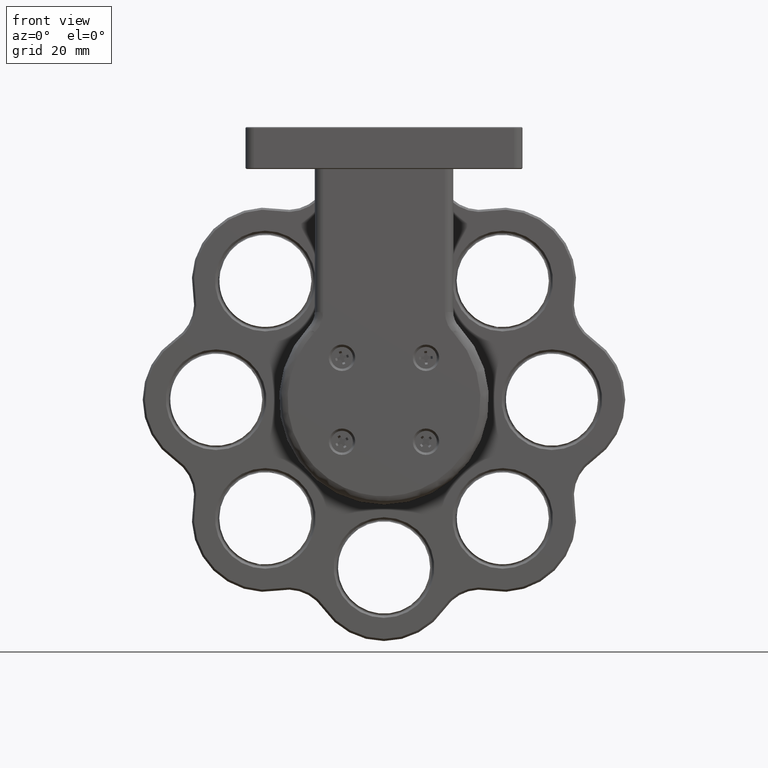
[diagram: clean part render]
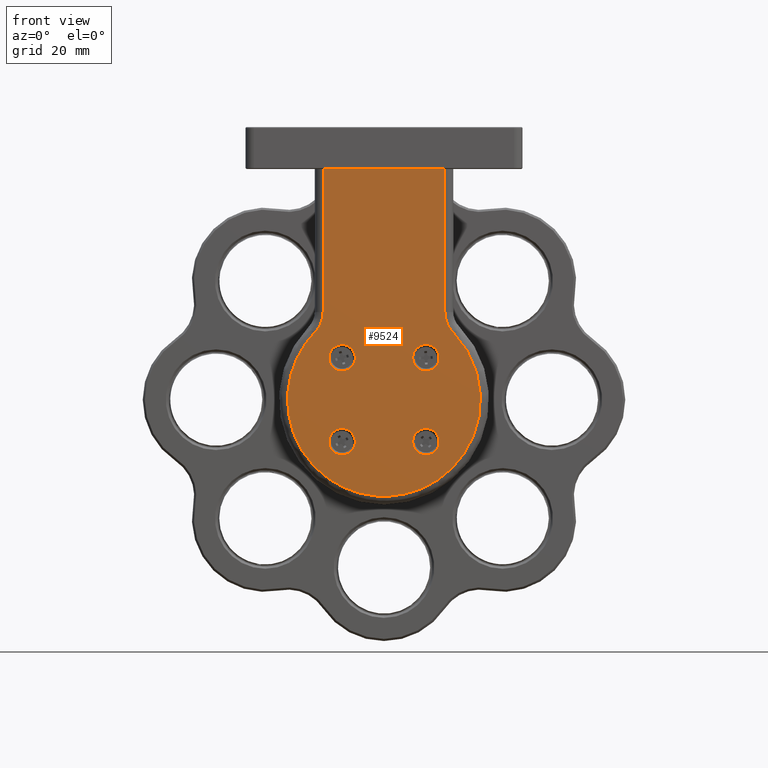
[diagram: same view with one face highlighted and labeled with its STEP entity id]
A machine part, front view. The second image highlights one B-rep face of the part: STEP entity #9524.
In plain terms, the highlighted planar face has unit normal (0, 1, 0).
Its self-contained STEP definition (entity closure, byte-faithful):
#30 = DIRECTION ( 'NONE',  ( 0.000000000000000000, 0.000000000000000000, -1.000000000000000000 ) ) ;
#593 = DIRECTION ( 'NONE',  ( 0.000000000000000000, -0.000000000000000000, 1.000000000000000000 ) ) ;
#861 = CIRCLE ( 'NONE', #7475, 3.150000000061943695 ) ;
#971 = CARTESIAN_POINT ( 'NONE',  ( -39.07838973162194662, -4.320881950128789839, 90.92247595290767492 ) ) ;
#1049 = CARTESIAN_POINT ( 'NONE',  ( -39.07838973162194662, -4.320881950128789839, 69.99999999999998579 ) ) ;
#1634 = VERTEX_POINT ( 'NONE', #16527 ) ;
#1723 = CARTESIAN_POINT ( 'NONE',  ( -8.095056398288617672, -4.320881950128789839, 86.04056489722920276 ) ) ;
#1875 = FACE_BOUND ( 'NONE', #10596, .T. ) ;
#2109 = CARTESIAN_POINT ( 'NONE',  ( -34.57838973162195373, -4.320881950093280466, 79.99999999999998579 ) ) ;
#2941 = VERTEX_POINT ( 'NONE', #11827 ) ;
#2986 = AXIS2_PLACEMENT_3D ( 'NONE', #2109, #18468, #14207 ) ;
#3275 = CARTESIAN_POINT ( 'NONE',  ( -14.57838973162195373, -4.320881950093280466, 79.99999999999998579 ) ) ;
#3298 = EDGE_LOOP ( 'NONE', ( #3677 ) ) ;
#3324 = EDGE_CURVE ( 'NONE', #11368, #18470, #9824, .T. ) ;
#3548 = FACE_BOUND ( 'NONE', #9763, .T. ) ;
#3677 = ORIENTED_EDGE ( 'NONE', *, *, #18954, .F. ) ;
#3691 = DIRECTION ( 'NONE',  ( -0.000000000000000000, 0.000000000000000000, -1.000000000000000000 ) ) ;
#3871 = CARTESIAN_POINT ( 'NONE',  ( -39.07838973162194662, -4.320881950128789839, 125.0000000000000000 ) ) ;
#4406 = CARTESIAN_POINT ( 'NONE',  ( -34.57838973162195373, -4.320881950093280466, 76.85000000003583409 ) ) ;
#4628 = DIRECTION ( 'NONE',  ( 0.000000000000000000, -1.000000000000000000, 0.000000000000000000 ) ) ;
#4809 = EDGE_CURVE ( 'NONE', #18470, #13626, #5486, .T. ) ;
#4942 = CARTESIAN_POINT ( 'NONE',  ( -0.7429387065847683491, -4.320881950128789839, 46.99999999999999289 ) ) ;
#4979 = CARTESIAN_POINT ( 'NONE',  ( -10.07838973162194307, -4.320881950128789839, 69.99999999999998579 ) ) ;
#5345 = ORIENTED_EDGE ( 'NONE', *, *, #10628, .F. ) ;
#5486 = LINE ( 'NONE', #1049, #14151 ) ;
#5490 = DIRECTION ( 'NONE',  ( 1.000000000000000000, 0.000000000000000000, -0.000000000000000000 ) ) ;
#5987 = CARTESIAN_POINT ( 'NONE',  ( -10.07838973162194485, -4.320881950128789839, 90.92247595290767492 ) ) ;
#6213 = CIRCLE ( 'NONE', #9332, 3.150000000061943695 ) ;
#6446 = CIRCLE ( 'NONE', #2986, 3.149999999964153474 ) ;
#6681 = CARTESIAN_POINT ( 'NONE',  ( -24.57838973162195018, -4.320881950128789839, 125.0000000000000000 ) ) ;
#6745 = LINE ( 'NONE', #4979, #7534 ) ;
#7057 = DIRECTION ( 'NONE',  ( 0.000000000000000000, -0.000000000000000000, 1.000000000000000000 ) ) ;
#7453 = ORIENTED_EDGE ( 'NONE', *, *, #18805, .F. ) ;
#7475 = AXIS2_PLACEMENT_3D ( 'NONE', #16918, #14245, #12670 ) ;
#7534 = VECTOR ( 'NONE', #3691, 1000.000000000000000 ) ;
#7551 = CARTESIAN_POINT ( 'NONE',  ( -39.77358252710395448, -4.320881950128789839, 87.36426203642724886 ) ) ;
#7815 =( BOUNDED_CURVE ( )  B_SPLINE_CURVE ( 3, ( #17768, #10357, #4942, #9747, #15771, #11420, #17443 ),
 .UNSPECIFIED., .F., .F. ) 
 B_SPLINE_CURVE_WITH_KNOTS ( ( 4, 3, 4 ),
 ( 0.000000000000000000, 0.5000000000000000000, 1.000000000000000000 ),
 .UNSPECIFIED. ) 
 CURVE ( )  GEOMETRIC_REPRESENTATION_ITEM ( )  RATIONAL_B_SPLINE_CURVE ( ( 1.000000000000000000, 0.5926418732377309873, 0.5926418732377309873, 1.000000000000000000, 0.5926418732377309873, 0.5926418732377309873, 1.000000000000000000 ) ) 
 REPRESENTATION_ITEM ( '' )  );
#7872 = FACE_BOUND ( 'NONE', #3298, .T. ) ;
#8277 = AXIS2_PLACEMENT_3D ( 'NONE', #16950, #9540, #593 ) ;
#9332 = AXIS2_PLACEMENT_3D ( 'NONE', #18135, #4628, #16653 ) ;
#9439 = ORIENTED_EDGE ( 'NONE', *, *, #15178, .F. ) ;
#9524 = ADVANCED_FACE ( 'NONE', ( #18428, #1875, #3548, #7872, #13885 ), #10931, .F. ) ;
#9540 = DIRECTION ( 'NONE',  ( 0.000000000000000000, 1.000000000000000000, 0.000000000000000000 ) ) ;
#9747 = CARTESIAN_POINT ( 'NONE',  ( -24.57838973162196794, -4.320881950128789839, 47.00000000000001421 ) ) ;
#9763 = EDGE_LOOP ( 'NONE', ( #5345 ) ) ;
#9824 =( BOUNDED_CURVE ( )  B_SPLINE_CURVE ( 3, ( #17631, #7551, #18201, #18109 ),
 .UNSPECIFIED., .F., .F. ) 
 B_SPLINE_CURVE_WITH_KNOTS ( ( 4, 4 ),
 ( 0.000000000000000000, 1.000000000000000000 ),
 .UNSPECIFIED. ) 
 CURVE ( )  GEOMETRIC_REPRESENTATION_ITEM ( )  RATIONAL_B_SPLINE_CURVE ( ( 1.000000000000000000, 0.9509752048749909870, 0.9509752048749909870, 1.000000000000000000 ) ) 
 REPRESENTATION_ITEM ( '' )  );
#10005 = LINE ( 'NONE', #6681, #18751 ) ;
#10357 = CARTESIAN_POINT ( 'NONE',  ( 8.528165298313011178, -4.320881950128789839, 68.95849166261918128 ) ) ;
#10596 = EDGE_LOOP ( 'NONE', ( #11221 ) ) ;
#10628 = EDGE_CURVE ( 'NONE', #19189, #19189, #6446, .T. ) ;
#10897 = CARTESIAN_POINT ( 'NONE',  ( -14.57838973162195373, -4.320881950152413609, 56.84999999993804920 ) ) ;
#10931 = PLANE ( 'NONE',  #8277 ) ;
#11217 =( BOUNDED_CURVE ( )  B_SPLINE_CURVE ( 3, ( #12328, #11942, #17968, #18740 ),
 .UNSPECIFIED., .F., .F. ) 
 B_SPLINE_CURVE_WITH_KNOTS ( ( 4, 4 ),
 ( 0.000000000000000000, 1.000000000000000000 ),
 .UNSPECIFIED. ) 
 CURVE ( )  GEOMETRIC_REPRESENTATION_ITEM ( )  RATIONAL_B_SPLINE_CURVE ( ( 1.000000000000000000, 0.9509752048749909870, 0.9509752048749909870, 1.000000000000000000 ) ) 
 REPRESENTATION_ITEM ( '' )  );
#11221 = ORIENTED_EDGE ( 'NONE', *, *, #15969, .F. ) ;
#11310 = CIRCLE ( 'NONE', #13204, 3.149999999964153474 ) ;
#11368 = VERTEX_POINT ( 'NONE', #15276 ) ;
#11420 = CARTESIAN_POINT ( 'NONE',  ( -57.68494476155691331, -4.320881950128789839, 68.95849166261922392 ) ) ;
#11824 = EDGE_CURVE ( 'NONE', #13626, #2941, #10005, .T. ) ;
#11827 = CARTESIAN_POINT ( 'NONE',  ( -10.07838973162194307, -4.320881950128789839, 125.0000000000000000 ) ) ;
#11934 = EDGE_CURVE ( 'NONE', #18621, #11368, #7815, .T. ) ;
#11942 = CARTESIAN_POINT ( 'NONE',  ( -10.07838973162194485, -4.320881950128789839, 89.07545668891037849 ) ) ;
#12328 = CARTESIAN_POINT ( 'NONE',  ( -10.07838973162194485, -4.320881950128789839, 90.92247595290767492 ) ) ;
#12421 = EDGE_LOOP ( 'NONE', ( #7453, #16502, #14129, #19104, #13501, #9439 ) ) ;
#12670 = DIRECTION ( 'NONE',  ( 0.000000000000000000, 0.000000000000000000, -1.000000000000000000 ) ) ;
#13204 = AXIS2_PLACEMENT_3D ( 'NONE', #3275, #15396, #30 ) ;
#13501 = ORIENTED_EDGE ( 'NONE', *, *, #11934, .F. ) ;
#13626 = VERTEX_POINT ( 'NONE', #3871 ) ;
#13649 = ORIENTED_EDGE ( 'NONE', *, *, #15318, .F. ) ;
#13650 = VERTEX_POINT ( 'NONE', #18392 ) ;
#13850 = VERTEX_POINT ( 'NONE', #10897 ) ;
#13885 = FACE_BOUND ( 'NONE', #15058, .T. ) ;
#14129 = ORIENTED_EDGE ( 'NONE', *, *, #4809, .F. ) ;
#14151 = VECTOR ( 'NONE', #7057, 1000.000000000000000 ) ;
#14207 = DIRECTION ( 'NONE',  ( 0.000000000000000000, 0.000000000000000000, -1.000000000000000000 ) ) ;
#14245 = DIRECTION ( 'NONE',  ( 0.000000000000000000, -1.000000000000000000, 0.000000000000000000 ) ) ;
#14618 = VERTEX_POINT ( 'NONE', #5987 ) ;
#15058 = EDGE_LOOP ( 'NONE', ( #13649 ) ) ;
#15178 = EDGE_CURVE ( 'NONE', #14618, #18621, #11217, .T. ) ;
#15276 = CARTESIAN_POINT ( 'NONE',  ( -41.06172306495528090, -4.320881950128789839, 86.04056489722921697 ) ) ;
#15318 = EDGE_CURVE ( 'NONE', #13650, #13650, #6213, .T. ) ;
#15396 = DIRECTION ( 'NONE',  ( 0.000000000000000000, -1.000000000000000000, 0.000000000000000000 ) ) ;
#15771 = CARTESIAN_POINT ( 'NONE',  ( -48.41384075665916242, -4.320881950128789839, 47.00000000000003553 ) ) ;
#15969 = EDGE_CURVE ( 'NONE', #13850, #13850, #861, .T. ) ;
#16502 = ORIENTED_EDGE ( 'NONE', *, *, #11824, .F. ) ;
#16527 = CARTESIAN_POINT ( 'NONE',  ( -14.57838973162195373, -4.320881950093280466, 76.85000000003583409 ) ) ;
#16653 = DIRECTION ( 'NONE',  ( 0.000000000000000000, 0.000000000000000000, -1.000000000000000000 ) ) ;
#16918 = CARTESIAN_POINT ( 'NONE',  ( -14.57838973162195373, -4.320881950152413609, 59.99999999999999289 ) ) ;
#16950 = CARTESIAN_POINT ( 'NONE',  ( -24.57838973162195018, -4.320881950128789839, 69.99999999999998579 ) ) ;
#17443 = CARTESIAN_POINT ( 'NONE',  ( -41.06172306495528090, -4.320881950128789839, 86.04056489722921697 ) ) ;
#17631 = CARTESIAN_POINT ( 'NONE',  ( -41.06172306495528090, -4.320881950128789839, 86.04056489722921697 ) ) ;
#17768 = CARTESIAN_POINT ( 'NONE',  ( -8.095056398288617672, -4.320881950128789839, 86.04056489722920276 ) ) ;
#17968 = CARTESIAN_POINT ( 'NONE',  ( -9.383196936139947653, -4.320881950128789839, 87.36426203642724886 ) ) ;
#18109 = CARTESIAN_POINT ( 'NONE',  ( -39.07838973162194662, -4.320881950128789839, 90.92247595290767492 ) ) ;
#18135 = CARTESIAN_POINT ( 'NONE',  ( -34.57838973162195373, -4.320881950152413609, 59.99999999999999289 ) ) ;
#18201 = CARTESIAN_POINT ( 'NONE',  ( -39.07838973162195373, -4.320881950128789839, 89.07545668891037849 ) ) ;
#18392 = CARTESIAN_POINT ( 'NONE',  ( -34.57838973162195373, -4.320881950152413609, 56.84999999993804920 ) ) ;
#18428 = FACE_OUTER_BOUND ( 'NONE', #12421, .T. ) ;
#18468 = DIRECTION ( 'NONE',  ( 0.000000000000000000, -1.000000000000000000, 0.000000000000000000 ) ) ;
#18470 = VERTEX_POINT ( 'NONE', #971 ) ;
#18621 = VERTEX_POINT ( 'NONE', #1723 ) ;
#18740 = CARTESIAN_POINT ( 'NONE',  ( -8.095056398288617672, -4.320881950128789839, 86.04056489722920276 ) ) ;
#18751 = VECTOR ( 'NONE', #5490, 1000.000000000000000 ) ;
#18805 = EDGE_CURVE ( 'NONE', #2941, #14618, #6745, .T. ) ;
#18954 = EDGE_CURVE ( 'NONE', #1634, #1634, #11310, .T. ) ;
#19104 = ORIENTED_EDGE ( 'NONE', *, *, #3324, .F. ) ;
#19189 = VERTEX_POINT ( 'NONE', #4406 ) ;